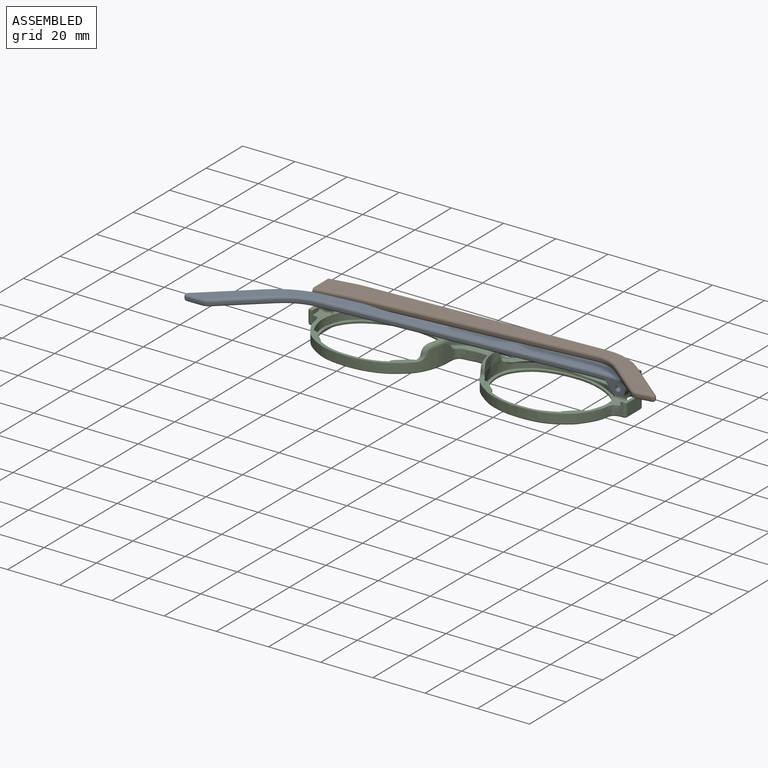
[diagram: assembled view]
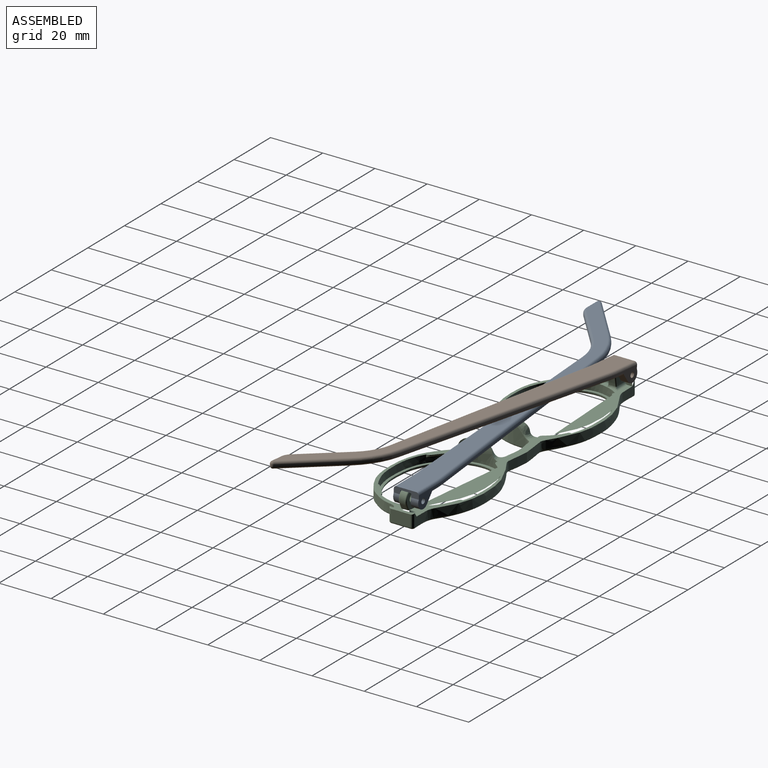
[diagram: assembled view, second angle]
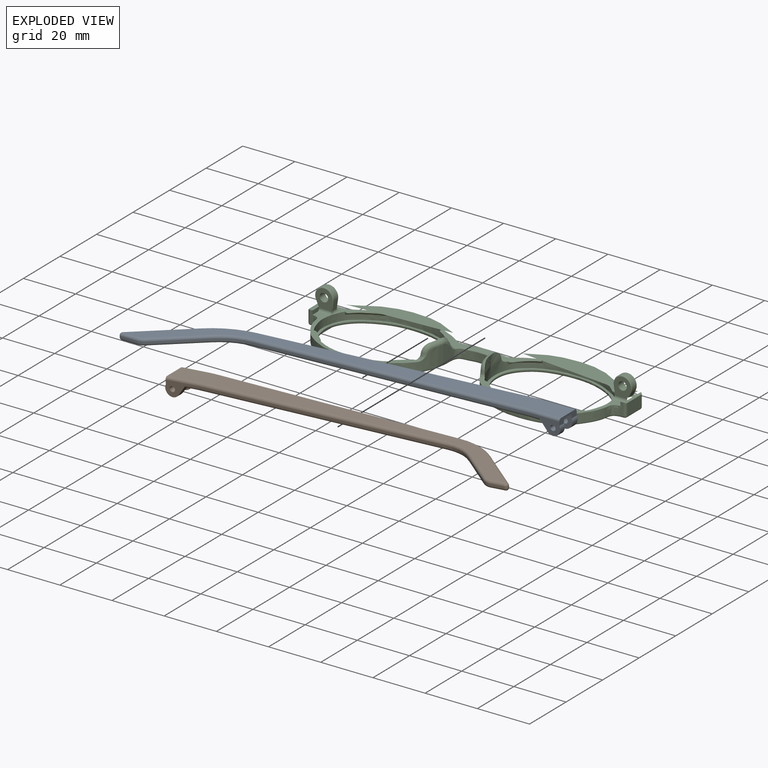
[diagram: exploded view]
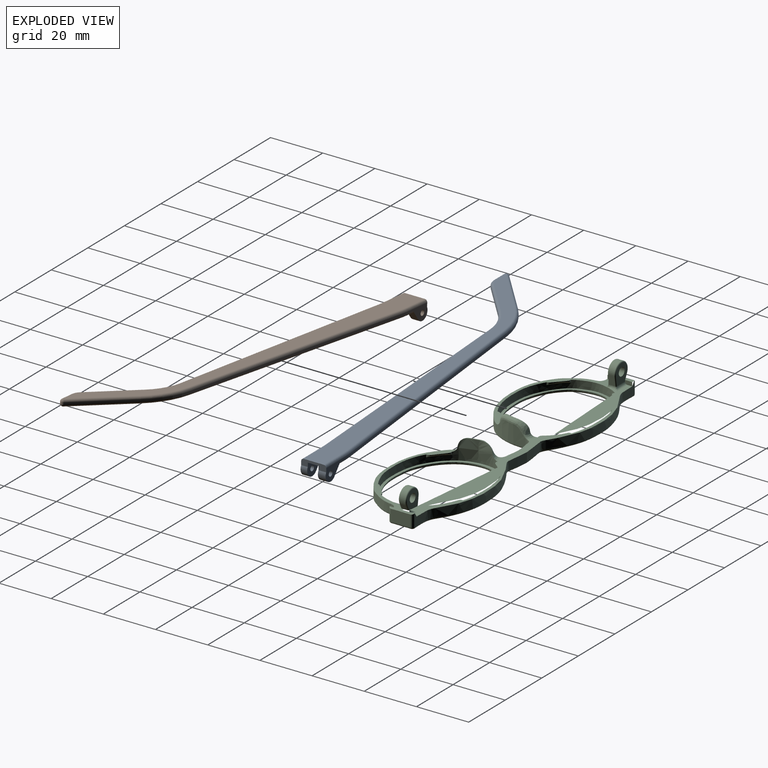
[diagram: exploded view, second angle]
ASSEMBLY  parts=3 mates=2
PART A: 52 faces, bbox 150.4x36.9x6.5 mm
  f0: cylinder r=2.75mm len=4.88mm, axis (0,-1,0), area 24.1mm2, adj f4,f5,f19,f47
  f1: cylinder r=2.75mm len=4.88mm, axis (0,-1,0), area 20.8mm2, adj f2,f3,f4,f46
  f2: plane 3.89x3.18mm, normal (0.77,0,0.63), area 9.8mm2, adj f1,f3,f11,f20,f46
  f3: plane 10.98x5.5mm, normal (0,-1,0), area 30.6mm2, adj f1,f2,f4,f18,f20,f33,f50
  f4: plane 9.6x2.41mm, normal (-1,0,0), area 16.5mm2, adj f0,f1,f3,f5,f12,f33,f45,f46
  f5: plane 10.21x5.5mm, normal (0,1,0), area 30.2mm2, adj f0,f4,f17,f19,f32,f45,f49
  f6: plane 100.38x10.76mm, normal (0.11,0.99,0), area 60.6mm2, adj f13,f17,f30,f43
  f7: plane 18.6x16.41mm, normal (0.66,0.75,0), area 14.9mm2, adj f13,f14,f28,f41
  f8: plane 5.46x0.6mm, normal (0,-1,0), area 3.3mm2, adj f14,f15,f26,f39
  f9: plane 15.57x13.74mm, normal (-0.66,-0.75,0), area 12.5mm2, adj f15,f16,f24,f37
  f10: plane 99.53x6.84mm, normal (-0.07,-1,0), area 59.9mm2, adj f16,f18,f22,f35
  f11: plane 142.21x34.48mm, normal (0,0,1), area 784mm2, adj f2,f19,f20,f21,f22,f23,f24,f25
  f12: plane 149.1x34.48mm, normal (0,0,-1), area 836.4mm2, adj f4,f33,f34,f35,f36,f37,f38,f39
  f13: cylinder r=30mm len=16.65mm, axis (0,0,-1), area 11.1mm2, adj f6,f7,f29,f42
  f14: cylinder r=1mm len=1.75mm, axis (0,0,-1), area 1.5mm2, adj f7,f8,f27,f40
  f15: cylinder r=5mm len=3.31mm, axis (0,0,-1), area 2.2mm2, adj f8,f9,f25,f38
  f16: cylinder r=20mm len=11.86mm, axis (0,0,1), area 7.9mm2, adj f9,f10,f23,f36
  f17: cylinder r=40mm len=4.26mm, axis (0,0,-1), area 2.6mm2, adj f5,f6,f31,f44
  f18: cylinder r=40mm len=2.74mm, axis (0,0,-1), area 1.6mm2, adj f3,f10,f21,f34
  f19: plane 3.89x3.18mm, normal (0.77,0,0.63), area 11.3mm2, adj f0,f5,f11,f32,f47
  f20: cylinder r=1mm len=3.73mm, axis (1,0,0), area 5.4mm2, adj f2,f3,f11,f21
  f21: torus R=41mm, axis (0,0,1), area 4.4mm2, adj f11,f18,f20,f22
  f22: cylinder r=1mm len=99.59mm, axis (1,-0.07,0), area 156.7mm2, adj f10,f11,f21,f23
  f23: torus R=21mm, axis (0,0,1), area 20.9mm2, adj f11,f16,f22,f24
  f24: cylinder r=1mm len=16.23mm, axis (0.75,-0.66,0), area 32.6mm2, adj f9,f11,f23,f25
  f25: torus R=4mm, axis (0,0,1), area 5.3mm2, adj f11,f15,f24,f26
  f26: cylinder r=1mm len=5.46mm, axis (1,0,0), area 8.6mm2, adj f8,f11,f25,f27
  f27: sphere r=1mm, area 2.4mm2, adj f14,f26,f28
  f28: cylinder r=1mm len=19.26mm, axis (-0.75,0.66,0), area 39mm2, adj f7,f11,f27,f29
  f29: torus R=29mm, axis (0,0,1), area 28.7mm2, adj f11,f13,f28,f30
  f30: cylinder r=1mm len=100.49mm, axis (-0.99,0.11,0), area 158.6mm2, adj f6,f11,f29,f31
  f31: torus R=39mm, axis (0,0,1), area 6.6mm2, adj f11,f17,f30,f32
  f32: cylinder r=1mm len=2.97mm, axis (-1,0,0), area 4.2mm2, adj f5,f11,f19,f31
  f33: cylinder r=1mm len=10.63mm, axis (-1,0,0), area 16.7mm2, adj f3,f4,f12,f34
  f34: torus R=41mm, axis (0,0,1), area 4.4mm2, adj f12,f18,f33,f35
  f35: cylinder r=1mm len=99.59mm, axis (-1,0.07,0), area 156.7mm2, adj f10,f12,f34,f36
  f36: torus R=21mm, axis (0,0,1), area 20.9mm2, adj f12,f16,f35,f37
  f37: cylinder r=1mm len=16.23mm, axis (-0.75,0.66,0), area 32.6mm2, adj f9,f12,f36,f38
  f38: torus R=4mm, axis (0,0,1), area 5.3mm2, adj f12,f15,f37,f39
  f39: cylinder r=1mm len=5.46mm, axis (-1,0,0), area 8.6mm2, adj f8,f12,f38,f40
  f40: sphere r=1mm, area 2.4mm2, adj f14,f39,f41
  f41: cylinder r=1mm len=19.26mm, axis (0.75,-0.66,0), area 39mm2, adj f7,f12,f40,f42
  f42: torus R=29mm, axis (0,0,1), area 28.7mm2, adj f12,f13,f41,f43
  f43: cylinder r=1mm len=100.49mm, axis (0.99,-0.11,0), area 158.6mm2, adj f6,f12,f42,f44
  f44: torus R=39mm, axis (0,0,1), area 6.6mm2, adj f12,f17,f43,f45
  f45: cylinder r=1mm len=9.86mm, axis (1,0,0), area 15.5mm2, adj f4,f5,f12,f44
  f46: plane 7.24x5.6mm, normal (0,1,0), area 27.2mm2, adj f1,f2,f4,f48,f50,f51
  f47: plane 7.24x5.6mm, normal (0,-1,0), area 27.2mm2, adj f0,f4,f19,f48,f49,f51
  f48: plane 5.19x4.1mm, normal (0,0,1), area 21.3mm2, adj f4,f46,f47,f51
  f49: cylinder r=1mm len=2.95mm, axis (0,-1,0), area 18.5mm2, adj f5,f47
  f50: cylinder r=1mm len=2.55mm, axis (0,-1,0), area 16mm2, adj f3,f46
  f51: plane 4.1x1.7mm, normal (-0.71,0,0.71), area 9.9mm2, adj f11,f46,f47,f48
PART B: 52 faces, bbox 150.4x36.9x6.5 mm
  f0: cylinder r=2.75mm len=4.88mm, axis (0,-1,0), area 24.1mm2, adj f4,f5,f19,f47
  f1: cylinder r=2.75mm len=4.88mm, axis (0,-1,0), area 20.8mm2, adj f2,f3,f4,f46
  f2: plane 3.89x3.18mm, normal (-0.77,0,0.63), area 9.8mm2, adj f1,f3,f11,f20,f46
  f3: plane 10.98x5.5mm, normal (0,-1,0), area 30.6mm2, adj f1,f2,f4,f18,f20,f33,f50
  f4: plane 9.6x2.41mm, normal (1,0,0), area 16.5mm2, adj f0,f1,f3,f5,f12,f33,f45,f46
  f5: plane 10.21x5.5mm, normal (0,1,0), area 30.2mm2, adj f0,f4,f17,f19,f32,f45,f49
  f6: plane 100.38x10.76mm, normal (-0.11,0.99,0), area 60.6mm2, adj f13,f17,f30,f43
  f7: plane 18.6x16.41mm, normal (-0.66,0.75,0), area 14.9mm2, adj f13,f14,f28,f41
  f8: plane 5.46x0.6mm, normal (0,-1,0), area 3.3mm2, adj f14,f15,f26,f39
  f9: plane 15.57x13.74mm, normal (0.66,-0.75,0), area 12.5mm2, adj f15,f16,f24,f37
  f10: plane 99.53x6.84mm, normal (0.07,-1,0), area 59.9mm2, adj f16,f18,f22,f35
  f11: plane 142.21x34.48mm, normal (0,0,1), area 784mm2, adj f2,f19,f20,f21,f22,f23,f24,f25
  f12: plane 149.1x34.48mm, normal (0,0,-1), area 836.4mm2, adj f4,f33,f34,f35,f36,f37,f38,f39
  f13: cylinder r=30mm len=16.65mm, axis (0,0,-1), area 11.1mm2, adj f6,f7,f29,f42
  f14: cylinder r=1mm len=1.75mm, axis (0,0,-1), area 1.5mm2, adj f7,f8,f27,f40
  f15: cylinder r=5mm len=3.31mm, axis (0,0,-1), area 2.2mm2, adj f8,f9,f25,f38
  f16: cylinder r=20mm len=11.86mm, axis (0,0,1), area 7.9mm2, adj f9,f10,f23,f36
  f17: cylinder r=40mm len=4.26mm, axis (0,0,-1), area 2.6mm2, adj f5,f6,f31,f44
  f18: cylinder r=40mm len=2.74mm, axis (0,0,-1), area 1.6mm2, adj f3,f10,f21,f34
  f19: plane 3.89x3.18mm, normal (-0.77,0,0.63), area 11.3mm2, adj f0,f5,f11,f32,f47
  f20: cylinder r=1mm len=3.73mm, axis (-1,0,0), area 5.4mm2, adj f2,f3,f11,f21
  f21: torus R=41mm, axis (0,0,1), area 4.4mm2, adj f11,f18,f20,f22
  f22: cylinder r=1mm len=99.59mm, axis (-1,-0.07,0), area 156.7mm2, adj f10,f11,f21,f23
  f23: torus R=21mm, axis (0,0,1), area 20.9mm2, adj f11,f16,f22,f24
  f24: cylinder r=1mm len=16.23mm, axis (-0.75,-0.66,0), area 32.6mm2, adj f9,f11,f23,f25
  f25: torus R=4mm, axis (0,0,1), area 5.3mm2, adj f11,f15,f24,f26
  f26: cylinder r=1mm len=5.46mm, axis (-1,0,0), area 8.6mm2, adj f8,f11,f25,f27
  f27: sphere r=1mm, area 2.4mm2, adj f14,f26,f28
  f28: cylinder r=1mm len=19.26mm, axis (0.75,0.66,0), area 39mm2, adj f7,f11,f27,f29
  f29: torus R=29mm, axis (0,0,1), area 28.7mm2, adj f11,f13,f28,f30
  f30: cylinder r=1mm len=100.49mm, axis (0.99,0.11,0), area 158.6mm2, adj f6,f11,f29,f31
  f31: torus R=39mm, axis (0,0,1), area 6.6mm2, adj f11,f17,f30,f32
  f32: cylinder r=1mm len=2.97mm, axis (1,0,0), area 4.2mm2, adj f5,f11,f19,f31
  f33: cylinder r=1mm len=10.63mm, axis (1,0,0), area 16.7mm2, adj f3,f4,f12,f34
  f34: torus R=41mm, axis (0,0,1), area 4.4mm2, adj f12,f18,f33,f35
  f35: cylinder r=1mm len=99.59mm, axis (1,0.07,0), area 156.7mm2, adj f10,f12,f34,f36
  f36: torus R=21mm, axis (0,0,1), area 20.9mm2, adj f12,f16,f35,f37
  f37: cylinder r=1mm len=16.23mm, axis (0.75,0.66,0), area 32.6mm2, adj f9,f12,f36,f38
  f38: torus R=4mm, axis (0,0,1), area 5.3mm2, adj f12,f15,f37,f39
  f39: cylinder r=1mm len=5.46mm, axis (1,0,0), area 8.6mm2, adj f8,f12,f38,f40
  f40: sphere r=1mm, area 2.4mm2, adj f14,f39,f41
  f41: cylinder r=1mm len=19.26mm, axis (-0.75,-0.66,0), area 39mm2, adj f7,f12,f40,f42
  f42: torus R=29mm, axis (0,0,1), area 28.7mm2, adj f12,f13,f41,f43
  f43: cylinder r=1mm len=100.49mm, axis (-0.99,-0.11,0), area 158.6mm2, adj f6,f12,f42,f44
  f44: torus R=39mm, axis (0,0,1), area 6.6mm2, adj f12,f17,f43,f45
  f45: cylinder r=1mm len=9.86mm, axis (-1,0,0), area 15.5mm2, adj f4,f5,f12,f44
  f46: plane 7.24x5.6mm, normal (0,1,0), area 27.2mm2, adj f1,f2,f4,f48,f50,f51
  f47: plane 7.24x5.6mm, normal (0,-1,0), area 27.2mm2, adj f0,f4,f19,f48,f49,f51
  f48: plane 5.19x4.1mm, normal (0,0,1), area 21.3mm2, adj f4,f46,f47,f51
  f49: cylinder r=1mm len=2.95mm, axis (0,-1,0), area 18.5mm2, adj f5,f47
  f50: cylinder r=1mm len=2.55mm, axis (0,-1,0), area 16mm2, adj f3,f46
  f51: plane 4.1x1.7mm, normal (0.71,0,0.71), area 9.9mm2, adj f11,f46,f47,f48
PART C: 148 faces, bbox 202.3x98.2x75 mm
  f0: extruded ~44.66x33.44mm, area 272.6mm2, adj f1,f2,f14,f32,f43,f44,f45,f47
  f1: plane 120x11.45mm, normal (0,0,1), area 242.5mm2, adj f0,f11,f27,f30,f31,f51,f52,f62
  f2: plane 49.84x23.31mm, normal (0,0,1), area 96.4mm2, adj f0,f6,f26,f28,f33,f49,f50,f54
  f3: plane 7.14x6.27mm, normal (0,1,0), area 28.9mm2, adj f25,f27,f30,f39,f40,f41,f42
  f4: plane 7.14x6.27mm, normal (0,-1,0), area 29.5mm2, adj f21,f25,f28,f33,f35,f36,f37
  f5: extruded ~42.33x31.7mm, area 35.8mm2, adj f13,f20
  f6: extruded ~60.21x26.17mm, area 310.9mm2, adj f2,f7,f16,f46,f47,f48,f49,f73
  f7: cylinder r=1mm len=4.8mm, axis (0,0,-1), area 7.3mm2, adj f6,f8,f18,f26,f29,f34
  f8: plane 7.5x4.51mm, normal (1,0,0), area 33.8mm2, adj f7,f9,f19,f34
  f9: cylinder r=1mm len=4.8mm, axis (0,0,-1), area 7.3mm2, adj f8,f10,f11,f17,f29,f34
  f10: extruded ~29.59x7.53mm, area 24.4mm2, adj f9,f27,f29
  f11: extruded ~60x7.52mm, area 208.2mm2, adj f1,f9,f15,f84
  f12: plane 120.6x34.46mm, normal (0,0,-1), area 390.4mm2, adj f15,f16,f17,f18,f19,f20,f88,f89
  f13: plane 44.82x33.67mm, normal (0,0,1), area 131.5mm2, adj f5,f14
  f14: extruded ~44.66x33.44mm, area 124.6mm2, adj f0,f13
  f15: bspline ~70.23x8.24mm, area 69.5mm2, adj f11,f12,f17,f88
  f16: bspline ~69.8x26.88mm, area 92.6mm2, adj f6,f12,f18,f89
  f17: torus R=0.3mm, axis (0,0,1), area 1.3mm2, adj f9,f12,f15,f19
  f18: torus R=0.3mm, axis (0,0,1), area 1.3mm2, adj f7,f12,f16,f19
  f19: cylinder r=0.7mm len=7.5mm, axis (0,1,0), area 8.2mm2, adj f8,f12,f17,f18
  f20: bspline ~43.79x33.14mm, area 131.3mm2, adj f5,f12
  f21: plane 3.06x1.89mm, normal (-1,0,0), area 0.4mm2, adj f4,f22,f32,f33,f37
  f22: plane 3.5x2.2mm, normal (-0.99,0,-0.14), area 7.8mm2, adj f21,f24,f31,f37,f42
  f23: plane 2.2x1.97mm, normal (0.9,0,-0.43), area 4.8mm2, adj f24,f29,f35,f39
  f24: cylinder r=3.54mm len=7.07mm, axis (0,-1,0), area 29mm2, adj f22,f23,f36,f41
  f25: cylinder r=1.6mm len=3.2mm, axis (0,-1,0), area 30.2mm2, adj f3,f4
  f26: plane 1.5x1mm, normal (0,-1,0), area 1.5mm2, adj f2,f7,f28,f29
  f27: plane 61.86x60.59mm, normal (-1,0,0), area 3.9mm2, adj f1,f3,f10,f29,f30
  f28: plane 3.7x1.5mm, normal (-1,0,0), area 5.3mm2, adj f2,f4,f26,f29,f33
  f29: plane 122.38x79.18mm, normal (0,0,1), area 230mm2, adj f7,f9,f10,f23,f26,f27,f28,f34
  f30: cylinder r=1mm len=5.8mm, axis (-1,0,0), area 8mm2, adj f1,f3,f27,f38
  f31: cylinder r=1mm len=2.14mm, axis (0,-1,0), area 2.3mm2, adj f1,f22,f32,f38
  f32: bspline ~3.6x1.14mm, area 2.7mm2, adj f0,f21,f31,f33
  f33: cylinder r=1mm len=4.87mm, axis (1,0,0), area 7.6mm2, adj f2,f4,f21,f28,f32
  f34: plane 9.59x0.93mm, normal (0.34,0,0.94), area 7.6mm2, adj f7,f8,f9,f29
  f35: cylinder r=0.4mm len=2.32mm, axis (-0.43,0,-0.9), area 1.4mm2, adj f4,f23,f29,f36
  f36: torus R=3.14mm, axis (0,1,0), area 7.9mm2, adj f4,f24,f35,f37
  f37: cylinder r=0.4mm len=3.56mm, axis (-0.14,0,0.99), area 1.6mm2, adj f4,f21,f22,f36
  f38: bspline ~1.4x1.4mm, area 0.4mm2, adj f30,f31,f40
  f39: cylinder r=0.4mm len=2.32mm, axis (0.43,0,0.9), area 1.4mm2, adj f3,f23,f29,f41
  f40: torus R=1.4mm, axis (0,1,0), area 0mm2, adj f3,f38,f42
  f41: torus R=3.14mm, axis (0,1,0), area 7.9mm2, adj f3,f24,f39,f42
  f42: cylinder r=0.4mm len=3.58mm, axis (0.14,0,-0.99), area 2.2mm2, adj f3,f22,f40,f41
  f43: plane 2.54x0.51mm, normal (0,0,1), area 0.1mm2, adj f0,f45,f47
  f44: bspline ~4.46x4mm, area 0.6mm2, adj f0,f48,f50
  f45: bspline ~8.31x8.2mm, area 6.9mm2, adj f0,f43,f46,f51
  f46: bspline ~6.59x4.14mm, area 8.5mm2, adj f6,f45,f47,f52
  f47: bspline ~5.04x2.48mm, area 8.3mm2, adj f0,f6,f43,f46,f48
  f48: bspline ~4.25x3.55mm, area 10.8mm2, adj f0,f6,f44,f47,f49
  f49: bspline ~5.02x3.13mm, area 4mm2, adj f2,f6,f48,f50
  f50: bspline ~2.34x2mm, area 1.8mm2, adj f0,f2,f44,f49
  f51: bspline ~3.58x2.73mm, area 5.3mm2, adj f0,f1,f45,f52
  f52: bspline ~4.47x3.14mm, area 2mm2, adj f1,f46,f51,f74
  f53: plane 3.18x2.65mm, normal (0,0,-1), area 0.4mm2, adj f56,f72
  f54: cylinder r=2mm len=1.39mm, axis (0,0,1), area 1mm2, adj f0,f2,f56,f72
  f55: cylinder r=2mm len=1.66mm, axis (0,0,1), area 1mm2, adj f0,f2,f56,f72
  f56: plane 4.21x3.49mm, normal (0.64,0.77,0), area 1.2mm2, adj f2,f53,f54,f55,f72
  f57: plane 0.96x0.89mm, normal (0,0,-1), area 0mm2, adj f60,f71
  f58: cylinder r=1.7mm len=1.06mm, axis (0,0,1), area 0.9mm2, adj f0,f2,f60,f71
  f59: cylinder r=1.7mm len=1.39mm, axis (0,0,1), area 1mm2, adj f0,f2,f60,f71
  f60: plane 4.22x3.92mm, normal (-0.68,0.73,0), area 1.5mm2, adj f2,f57,f58,f59,f71
  f61: plane 4.75x4.65mm, normal (0,0,-1), area 1.3mm2, adj f62,f63,f69
  f62: cylinder r=1.53mm len=1.85mm, axis (0,0,1), area 0.8mm2, adj f0,f1,f61,f63,f69
  f63: cylinder r=16.07mm len=6.17mm, axis (0,0,1), area 1.7mm2, adj f1,f61,f62,f64,f69
  f64: cylinder r=0.91mm len=1.2mm, axis (0,0,1), area 0.7mm2, adj f0,f1,f63,f69
  f65: plane 3.47x2.82mm, normal (0,0,-1), area 0.5mm2, adj f67,f68,f70
  f66: cylinder r=1.01mm len=1.22mm, axis (0,0,1), area 0.8mm2, adj f0,f1,f67,f70
  f67: cylinder r=22.62mm len=8.88mm, axis (0,0,1), area 2.8mm2, adj f1,f65,f66,f68,f70
  f68: cylinder r=1.1mm len=1.58mm, axis (0,0,1), area 0.8mm2, adj f0,f1,f65,f67,f70
  f69: bspline ~8.81x7.4mm, area 12.9mm2, adj f0,f61,f62,f63,f64
  f70: bspline ~12.44x8.01mm, area 15.1mm2, adj f0,f65,f66,f67,f68
  f71: bspline ~6.43x5.73mm, area 7.4mm2, adj f0,f57,f58,f59,f60
  f72: bspline ~7.41x6.72mm, area 8.9mm2, adj f0,f53,f54,f55,f56
  f73: bspline ~8.64x2.65mm, area 3.9mm2, adj f1,f6,f74,f146
  f74: bspline ~3.75x2.3mm, area 0.7mm2, adj f6,f52,f73
  f75: extruded ~44.66x33.44mm, area 272.7mm2, adj f1,f76,f87,f105,f116,f117,f118,f120
  f76: plane 49.84x23.31mm, normal (0,0,1), area 96.4mm2, adj f75,f80,f99,f101,f106,f122,f123,f127
  f77: plane 7.14x6.27mm, normal (0,1,0), area 28.9mm2, adj f98,f100,f103,f112,f113,f114,f115
  f78: plane 7.14x6.27mm, normal (0,-1,0), area 29.5mm2, adj f94,f98,f101,f106,f108,f109,f110
  f79: extruded ~42.33x31.7mm, area 35.8mm2, adj f86,f93
  f80: extruded ~60.21x26.17mm, area 310.9mm2, adj f6,f76,f81,f89,f119,f120,f121,f122
  f81: cylinder r=1mm len=4.8mm, axis (0,0,-1), area 7.3mm2, adj f80,f82,f91,f99,f102,f107
  f82: plane 7.5x4.51mm, normal (-1,0,0), area 33.8mm2, adj f81,f83,f92,f107
  f83: cylinder r=1mm len=4.8mm, axis (0,0,-1), area 7.3mm2, adj f82,f84,f85,f90,f102,f107
  f84: extruded ~60x7.52mm, area 208.2mm2, adj f1,f11,f83,f88
  f85: extruded ~29.59x7.53mm, area 24.4mm2, adj f83,f100,f102
  f86: plane 44.82x33.67mm, normal (0,0,1), area 131.5mm2, adj f79,f87
  f87: extruded ~44.66x33.44mm, area 124.6mm2, adj f75,f86
  f88: bspline ~70.23x8.24mm, area 69.5mm2, adj f12,f15,f84,f90
  f89: bspline ~69.8x26.88mm, area 92.6mm2, adj f12,f16,f80,f91
  f90: torus R=0.3mm, axis (0,0,1), area 1.3mm2, adj f12,f83,f88,f92
  f91: torus R=0.3mm, axis (0,0,1), area 1.3mm2, adj f12,f81,f89,f92
  f92: cylinder r=0.7mm len=7.5mm, axis (0,1,0), area 8.2mm2, adj f12,f82,f90,f91
  f93: bspline ~43.79x33.14mm, area 131.3mm2, adj f12,f79
  f94: plane 3.06x1.89mm, normal (1,0,0), area 0.4mm2, adj f78,f95,f105,f106,f110
  f95: plane 3.5x2.2mm, normal (0.99,0,-0.14), area 7.8mm2, adj f94,f97,f104,f110,f115
  f96: plane 2.2x1.97mm, normal (-0.9,0,-0.43), area 4.8mm2, adj f97,f102,f108,f112
  f97: cylinder r=3.54mm len=7.07mm, axis (0,-1,0), area 29mm2, adj f95,f96,f109,f114
  f98: cylinder r=1.6mm len=3.2mm, axis (0,-1,0), area 30.2mm2, adj f77,f78
  f99: plane 1.5x1mm, normal (0,-1,0), area 1.5mm2, adj f76,f81,f101,f102
  f100: plane 61.86x60.59mm, normal (1,0,0), area 3.9mm2, adj f1,f77,f85,f102,f103
  f101: plane 3.7x1.5mm, normal (1,0,0), area 5.3mm2, adj f76,f78,f99,f102,f106
  f102: plane 122.38x79.18mm, normal (0,0,1), area 230mm2, adj f81,f83,f85,f96,f99,f100,f101,f107
  f103: cylinder r=1mm len=5.8mm, axis (1,0,0), area 8mm2, adj f1,f77,f100,f111
  f104: cylinder r=1mm len=2.14mm, axis (0,-1,0), area 2.3mm2, adj f1,f95,f105,f111
  f105: bspline ~3.47x1.14mm, area 2.6mm2, adj f75,f94,f104,f106
  f106: cylinder r=1mm len=4.87mm, axis (-1,0,0), area 7.6mm2, adj f76,f78,f94,f101,f105
  f107: plane 9.59x0.93mm, normal (-0.34,0,0.94), area 7.6mm2, adj f81,f82,f83,f102
  f108: cylinder r=0.4mm len=2.32mm, axis (0.43,0,-0.9), area 1.4mm2, adj f78,f96,f102,f109
  f109: torus R=3.14mm, axis (0,1,0), area 7.9mm2, adj f78,f97,f108,f110
  f110: cylinder r=0.4mm len=3.56mm, axis (0.14,0,0.99), area 1.6mm2, adj f78,f94,f95,f109
  f111: bspline ~1.4x1.4mm, area 0.4mm2, adj f103,f104,f113
  f112: cylinder r=0.4mm len=2.32mm, axis (-0.43,0,0.9), area 1.4mm2, adj f77,f96,f102,f114
  f113: torus R=1.4mm, axis (0,1,0), area 0mm2, adj f77,f111,f115
  f114: torus R=3.14mm, axis (0,1,0), area 7.9mm2, adj f77,f97,f112,f115
  f115: cylinder r=0.4mm len=3.58mm, axis (-0.14,0,-0.99), area 2.2mm2, adj f77,f95,f113,f114
  f116: plane 2.54x0.51mm, normal (0,0,1), area 0.1mm2, adj f75,f118,f120
  f117: bspline ~4.46x4mm, area 0.7mm2, adj f75,f121,f123
  f118: bspline ~8.31x8.2mm, area 6.9mm2, adj f75,f116,f119,f124
  f119: bspline ~6.59x4.14mm, area 8.5mm2, adj f80,f118,f120,f125
  f120: bspline ~5.04x2.48mm, area 8.3mm2, adj f75,f80,f116,f119,f121
  f121: bspline ~4.25x3.55mm, area 10.8mm2, adj f75,f80,f117,f120,f122
  f122: bspline ~5.02x3.13mm, area 4mm2, adj f76,f80,f121,f123
  f123: bspline ~2.34x2mm, area 1.8mm2, adj f75,f76,f117,f122
  f124: bspline ~3.58x2.73mm, area 5.3mm2, adj f1,f75,f118,f125
  f125: bspline ~4.47x3.14mm, area 2mm2, adj f1,f119,f124,f147
  f126: plane 3.18x2.65mm, normal (0,0,-1), area 0.4mm2, adj f129,f145
  f127: cylinder r=2mm len=1.39mm, axis (0,0,1), area 1mm2, adj f75,f76,f129,f145
  f128: cylinder r=2mm len=1.66mm, axis (0,0,1), area 1mm2, adj f75,f76,f129,f145
  f129: plane 4.21x3.49mm, normal (-0.64,0.77,0), area 1.2mm2, adj f76,f126,f127,f128,f145
  f130: plane 0.96x0.89mm, normal (0,0,-1), area 0mm2, adj f133,f144
  f131: cylinder r=1.7mm len=1.06mm, axis (0,0,1), area 0.9mm2, adj f75,f76,f133,f144
  f132: cylinder r=1.7mm len=1.39mm, axis (0,0,1), area 1mm2, adj f75,f76,f133,f144
  f133: plane 4.22x3.92mm, normal (0.68,0.73,0), area 1.5mm2, adj f76,f130,f131,f132,f144
  f134: plane 4.75x4.65mm, normal (0,0,-1), area 1.3mm2, adj f135,f136,f142
  f135: cylinder r=1.53mm len=1.85mm, axis (0,0,1), area 0.9mm2, adj f1,f75,f134,f136,f142
  f136: cylinder r=16.07mm len=6.17mm, axis (0,0,1), area 1.7mm2, adj f1,f134,f135,f137,f142
  f137: cylinder r=0.91mm len=1.2mm, axis (0,0,1), area 0.7mm2, adj f1,f75,f136,f142
  f138: plane 3.47x2.82mm, normal (0,0,-1), area 0.5mm2, adj f140,f141,f143
  f139: cylinder r=1.01mm len=1.22mm, axis (0,0,1), area 0.8mm2, adj f1,f75,f140,f143
  f140: cylinder r=22.62mm len=8.88mm, axis (0,0,1), area 2.8mm2, adj f1,f138,f139,f141,f143
  f141: cylinder r=1.1mm len=1.58mm, axis (0,0,1), area 0.8mm2, adj f1,f75,f138,f140,f143
  f142: bspline ~8.81x7.4mm, area 12.9mm2, adj f75,f134,f135,f136,f137
  f143: bspline ~11.45x7.3mm, area 15.1mm2, adj f75,f138,f139,f140,f141
  f144: bspline ~6.96x6.24mm, area 7.4mm2, adj f75,f130,f131,f132,f133
  f145: bspline ~7.41x6.72mm, area 8.9mm2, adj f75,f126,f127,f128,f129
  f146: bspline ~8.54x2.33mm, area 3.9mm2, adj f1,f73,f80,f147
  f147: bspline ~3.75x2.3mm, area 0.7mm2, adj f80,f125,f146
PLACE A rot(axis=(0,-1,0),180deg) t=(15,-30.14,-52.46)mm
PLACE B rot(axis=(0,1,0),175deg) t=(58.86,-30.14,-45.55)mm
PLACE C t=(37.25,-26.66,-64.21)mm
MATE revolute C.f109 <-> B.f49  axis (0,-1,0) through (-19.95,-18.36,-56.21)mm
MATE revolute C.f24 <-> A.f49  axis (0,-1,0) through (94.45,-18.36,-56.21)mm
